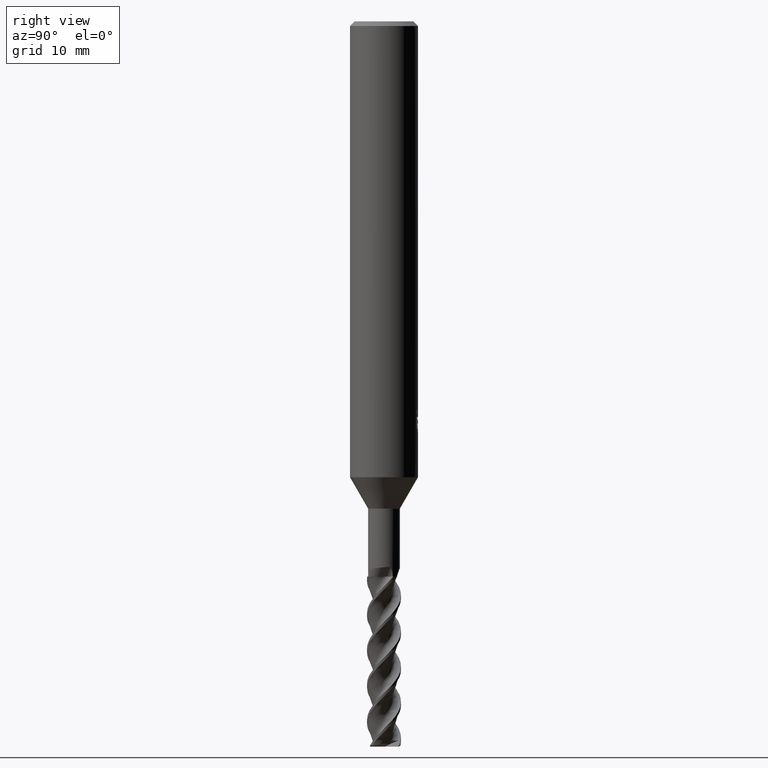
[diagram: clean part render]
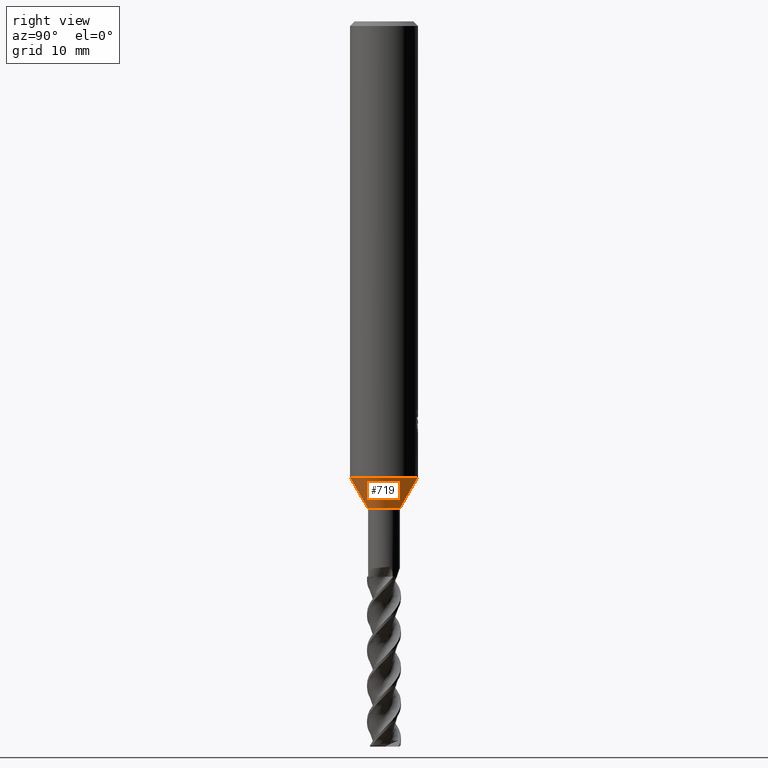
[diagram: same view with one face highlighted and labeled with its STEP entity id]
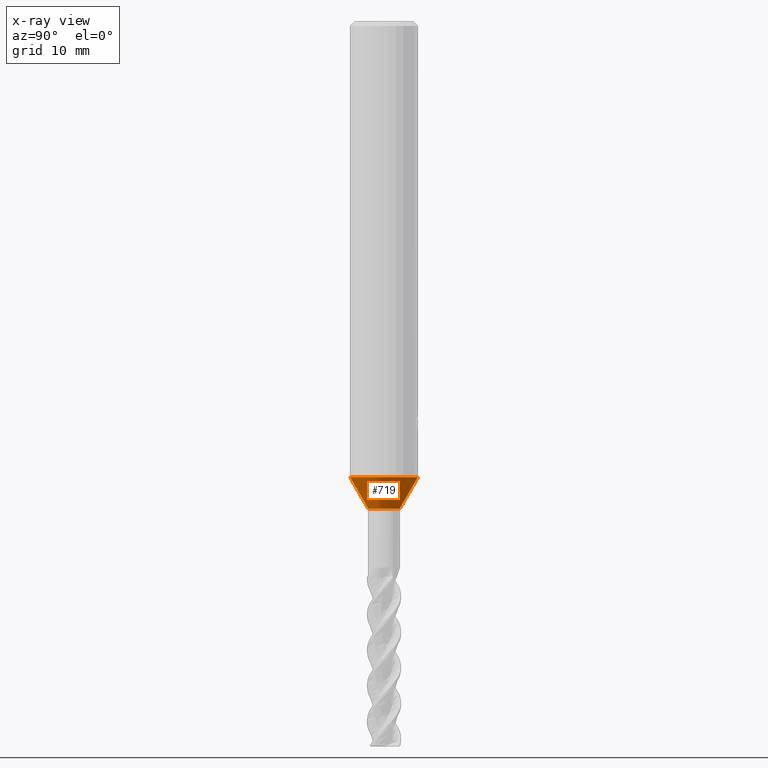
[diagram: x-ray of the same camera — body ghosted, the highlighted face saturated]
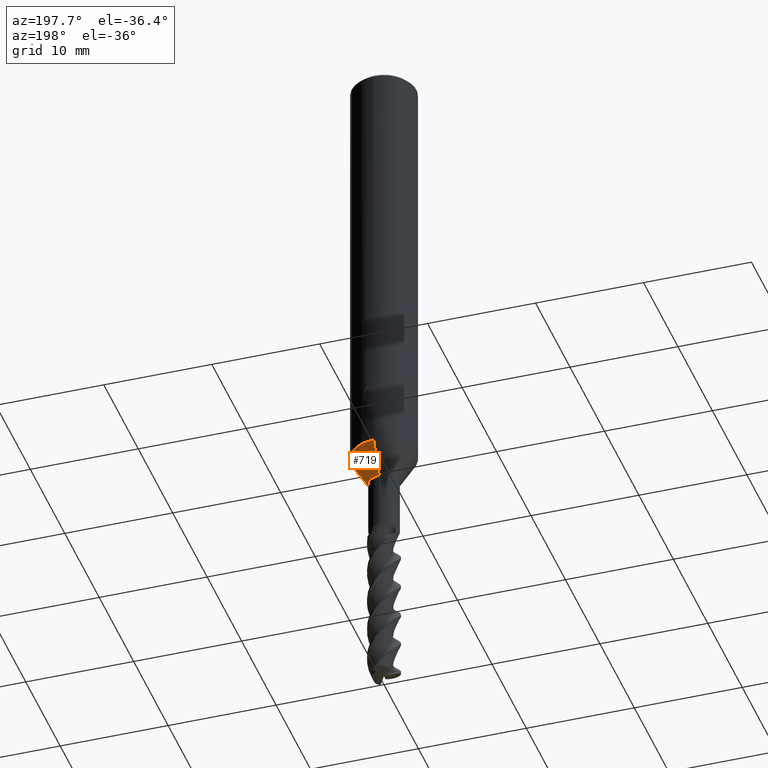
[diagram: same view with one face highlighted and labeled with its STEP entity id]
A machine part, right view. The second image highlights one B-rep face of the part: STEP entity #719.
The next image is the same camera in x-ray: the body ghosted, the highlighted face saturated — about 0% of this face is hidden behind the body in this view.
A second angle (auxiliary view) of the same face is appended — the face is thin or edge-on in the first view.
In plain terms, the highlighted conical surface has half-angle 30.003 deg.
Its self-contained STEP definition (entity closure, byte-faithful):
#513=VERTEX_POINT('',#1445);
#529=VERTEX_POINT('',#1464);
#569=VERTEX_POINT('',#1506);
#711=VERTEX_POINT('',#1667);
#719=ADVANCED_FACE('',(#1676),#1677,.T.);
#779=EDGE_CURVE('',#513,#529,#1744,.T.);
#797=EDGE_CURVE('',#513,#569,#1764,.T.);
#991=EDGE_CURVE('',#711,#569,#1968,.T.);
#1049=EDGE_CURVE('',#529,#711,#2034,.T.);
#1445=CARTESIAN_POINT('',(0.0,2.99995,-40.229));
#1464=CARTESIAN_POINT('',(0.0,1.39995,-43.0));
#1506=CARTESIAN_POINT('',(3.67375783114944E-016,-2.99995,-40.229));
#1667=CARTESIAN_POINT('',(1.71438766503364E-016,-1.39995,-43.0));
#1676=FACE_OUTER_BOUND('',#5077,.T.);
#1677=CONICAL_SURFACE('',#5078,2.19995,0.523642730836666);
#1744=LINE('',#5704,#5705);
#1764=CIRCLE('',#5741,2.99995);
#1968=LINE('',#7568,#7569);
#2034=CIRCLE('',#8262,1.39995);
#5077=EDGE_LOOP('',(#13234,#13235,#13236,#13237));
#5078=AXIS2_PLACEMENT_3D('',#13238,#13239,#13240);
#5704=CARTESIAN_POINT('',(-2.69407274809154E-016,2.19995,-41.6145));
#5705=VECTOR('',#13313,1.0);
#5741=AXIS2_PLACEMENT_3D('',#13341,#13342,#13343);
#7568=CARTESIAN_POINT('',(2.69407274809154E-016,-2.19995,-41.6145));
#7569=VECTOR('',#13481,1.0);
#8262=AXIS2_PLACEMENT_3D('',#13608,#13609,#13610);
#13234=ORIENTED_EDGE('',*,*,#779,.F.);
#13235=ORIENTED_EDGE('',*,*,#797,.T.);
#13236=ORIENTED_EDGE('',*,*,#991,.F.);
#13237=ORIENTED_EDGE('',*,*,#1049,.F.);
#13238=CARTESIAN_POINT('',(0.0,0.0,-41.6145));
#13239=DIRECTION('',(-0.0,-0.0,1.0));
#13240=DIRECTION('',(0.0,1.0,0.0));
#13313=DIRECTION('',(6.12349792617488E-017,-0.500038065870028,-0.866003425328654));
#13341=CARTESIAN_POINT('',(0.0,0.0,-40.229));
#13342=DIRECTION('',(0.0,0.0,-1.0));
#13343=DIRECTION('',(0.0,1.0,0.0));
#13481=DIRECTION('',(6.12349792617488E-017,-0.500038065870028,0.866003425328654));
#13608=CARTESIAN_POINT('',(0.0,0.0,-43.0));
#13609=DIRECTION('',(0.0,0.0,-1.0));
#13610=DIRECTION('',(0.0,1.0,0.0));